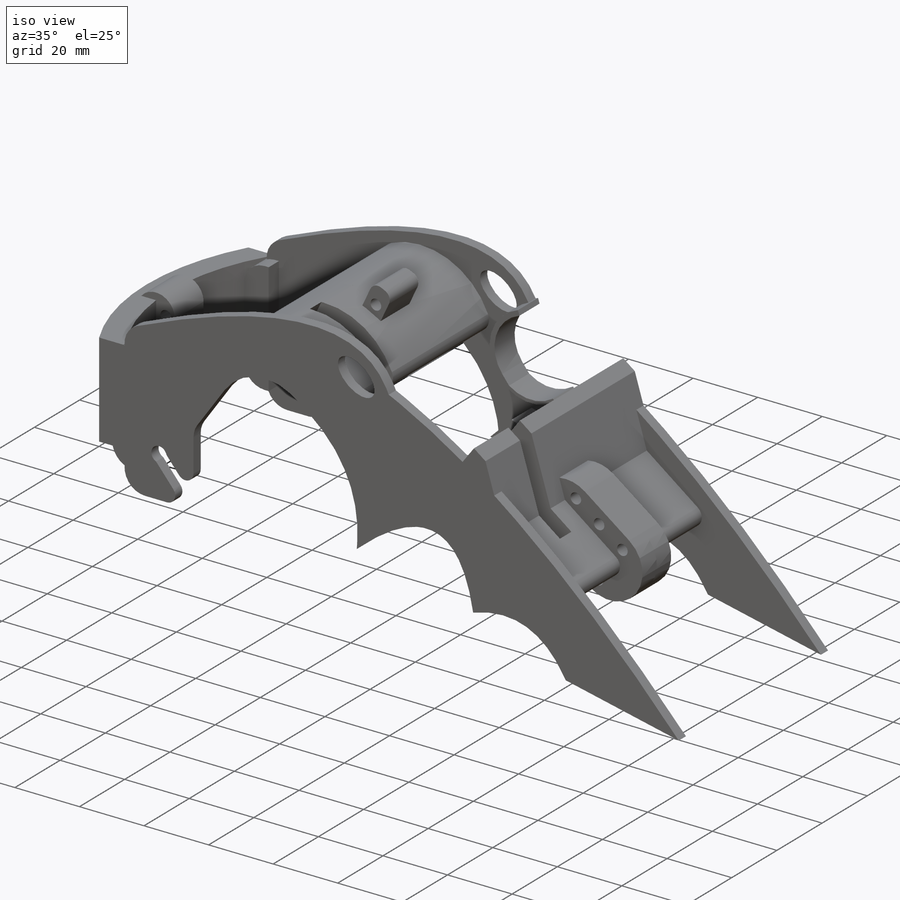
[diagram: iso view]
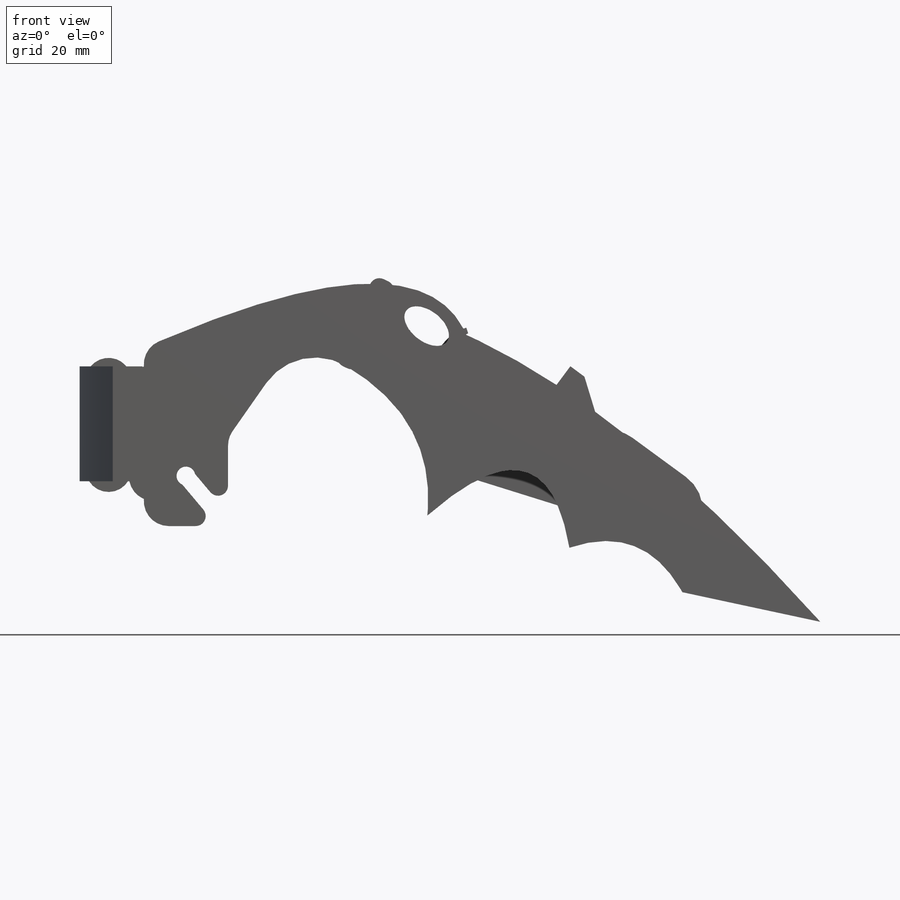
[diagram: front view]
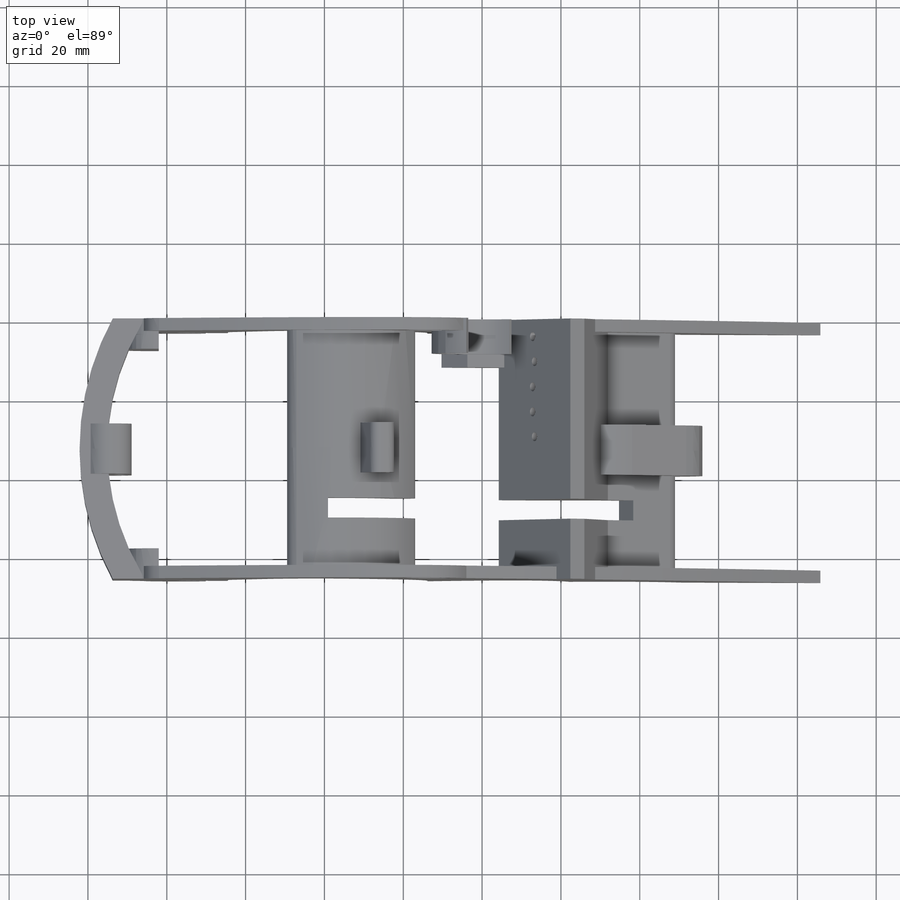
[diagram: top view]
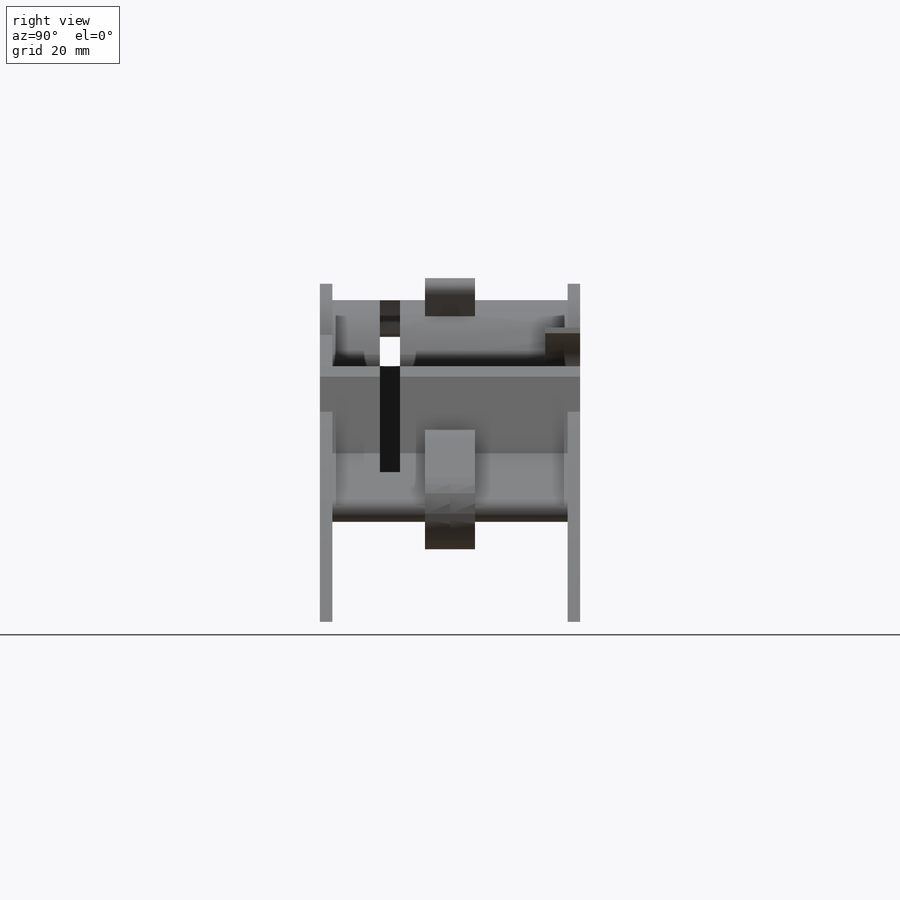
[diagram: right view]
SOLIDWORKS PART (.sldprt)
format: sldprt  version: not decoded by parser v0  size: 1,011,200 bytes
history: native  units: mm
features: sketch x17, extrude x8, cut_extrude x6, fillet x5, plane x2, material x1, mirror x1, hole x1 (+13 scaffold rows collapsed)
feature tree (54):
  scaffold x13  (default folders/planes/origin — collapsed)
  material  "Material <not specified>"
  sketch  "Sketch1"  dims[c1.D2=4.75mm c1.D1=~13.217279mm c1.D3=~22.151508mm c1.D4=~37.970559mm c1.D5=~50.815429mm c1.D6=~85.837991mm c1.D7=~3.996525mm c1.D8=~8.933753mm c1.D9=~11.660667mm c1.D10=~13.89812mm c1.D11=~14.065909mm c1.D12=~16.47115mm c1.D13=~19.198064mm c1.D14=~47.440785mm c1.D15=~64.461456mm c1.D16=~75.149723mm c1.D17=~85.837991mm c2.D8=~8.933753mm c2.D9=~11.660667mm c2.D11=~14.065909mm c2.D12=~1.323732mm c2.D13=~11.04101mm c2.D18=~33.806971mm c2.D19=~35.354851mm c2.D20=~35.36744mm c2.D21=~36.254075mm c2.D22=~37.113438mm c2.D23=~39.346528mm c2.D24=~42.438981mm c2.D25=~43.338205mm c2.D26=~8.734551mm c2.D27=~11.388693mm c2.D28=~16.229544mm c2.D29=~16.88306mm c2.D30=~28.169433mm c2.D31=~35.686781mm c3.D19=~35.354851mm c3.D21=~36.254075mm c3.D23=4.2mm]
  extrude  "Boss-Extrude1"  Depth=3.175mm
  fillet  "Fillet1"  Radius=6.35mm
  fillet  "Fillet2"  Radius=15.24mm
  fillet  "Fillet3"  Radius=6.35mm
  sketch  "Sketch2"  dims[D1=7.62mm]
  extrude  "Boss-Extrude2"  Depth=66.04mm
  plane  "Plane1"  Offset=33.02mm
  fillet  "Fillet4"  Radius=2.54mm
  mirror  "Mirror2"
  fillet  "Fillet5"  Radius=6.35mm
  sketch  "Sketch3"  dims[D1=6.35mm D2=6.35mm]
  extrude  "Boss-Extrude3"  [1 undecoded]
  sketch  "Sketch6"
  extrude  "Boss-Extrude6"  [1 undecoded]
  sketch  "Sketch8"
  cut_extrude  "Cut-Extrude1"  Depth=76.2mm
  sketch  "Sketch10"  dims[D1=3.175mm]
  sketch  "Sketch11"  dims[c1.D1=15.24mm c1.D2=30.48mm c1.D3=4.445mm c1.D4=30.48mm c1.D5=20.32mm c1.D6=~24.472703mm c2.D1=22.86mm c2.D6=30.48mm c3.D1=30.48mm]
  extrude  "Boss-Extrude7"  [1 undecoded]
  sketch  "Sketch12"  dims[D1=0.0mm D2=0.0mm D3=0.0mm D4=0.0mm]
  cut_extrude  "Cut-Extrude2"  [1 undecoded]
  plane  "Plane2"  Offset=15.24mm
  sketch  "Sketch13"  dims[D1=88.9mm]
  cut_extrude  "Cut-Extrude3"  Depth=2.54mm
  sketch  "Sketch14"  dims[D2=25.4mm D1=16.51mm D3=~22.717284mm]
  cut_extrude  "Cut-Extrude9"  Depth=68.58mm
  sketch  "Sketch18"  dims[D1=1.016mm D2=0.508mm]
  extrude  "Boss-Extrude8"  Depth=8.89mm
  hole  "Tap Drill for #4-40 Tap1"  Diameter=2.2606mm Depth=12.7mm
  sketch  "Sketch19"
  sketch  "Sketch20"  dims[Hole Dia.=2.2606mm Hole Depth=12.7mm Drill Angle=118.0deg]
  sketch  "Sketch21"  dims[c1.D2=3.302mm c1.D3=3.302mm c1.D4=2.54mm c1.D5=3.302mm c1.D9=3.302mm c1.D10=3.302mm c1.D12=3.302mm c1.D13=3.302mm c1.D14=3.302mm c1.D1=6.35mm c2.D2=19.05mm c2.D3=9.525mm c3.D2=9.525mm c3.D4=6.35mm c3.D6=10.16mm c3.D7=6.35mm c3.D8=~14.354452mm c4.D8=0.0deg c5.D8=22.352mm c5.D11=11.176mm c5.D12=11.176mm]
  extrude  "Boss-Extrude11"  Depth=6.35mm
  sketch  "Sketch23"
  extrude  "Boss-Extrude13"  Depth=8.89mm
  sketch  "Sketch24"
  cut_extrude  "Cut-Extrude10"  Depth=36.83mm
  sketch  "Sketch25"
  cut_extrude  "Cut-Extrude11"  Depth=53.848mm
decode coverage: 27 of 38 modeling features carry decoded parameters
note: ~ marks probable driven/reference dimensions
note: 4 parameter values undecoded
summary: no parameter record found for 4 features
note: suppression state not decoded; provenance and decode notes live in map.json
